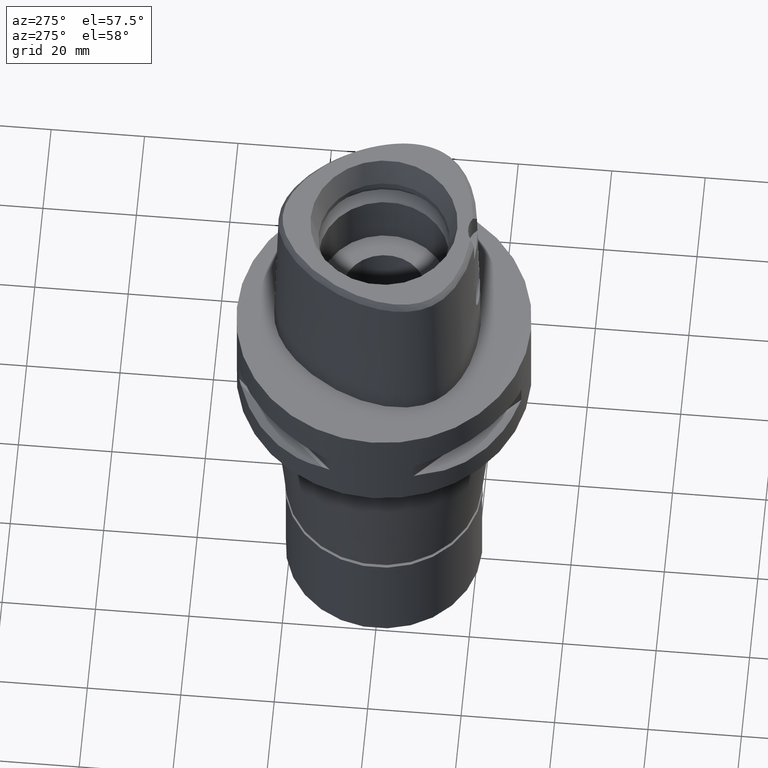
[diagram: clean part render]
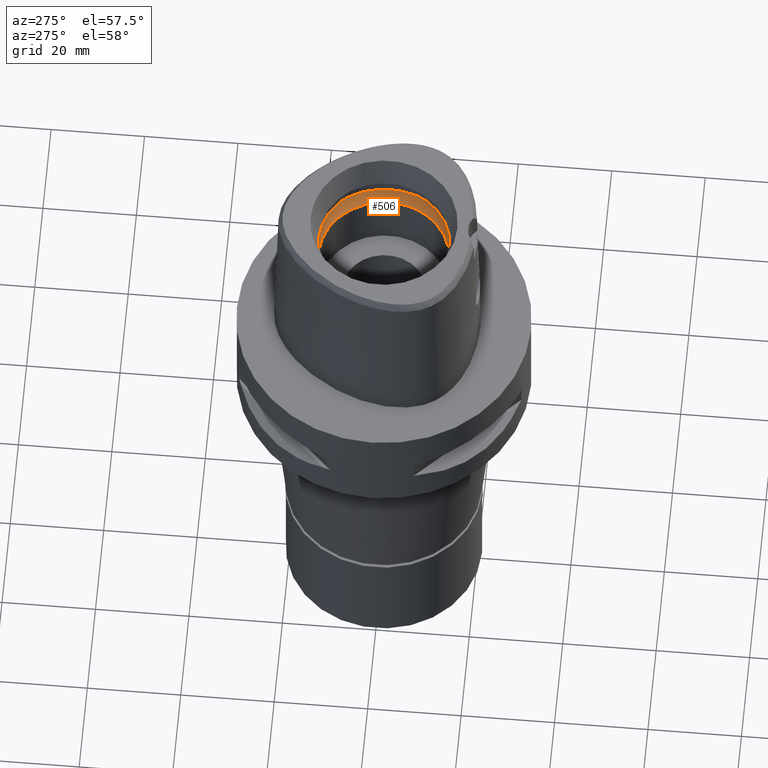
[diagram: same view with one face highlighted and labeled with its STEP entity id]
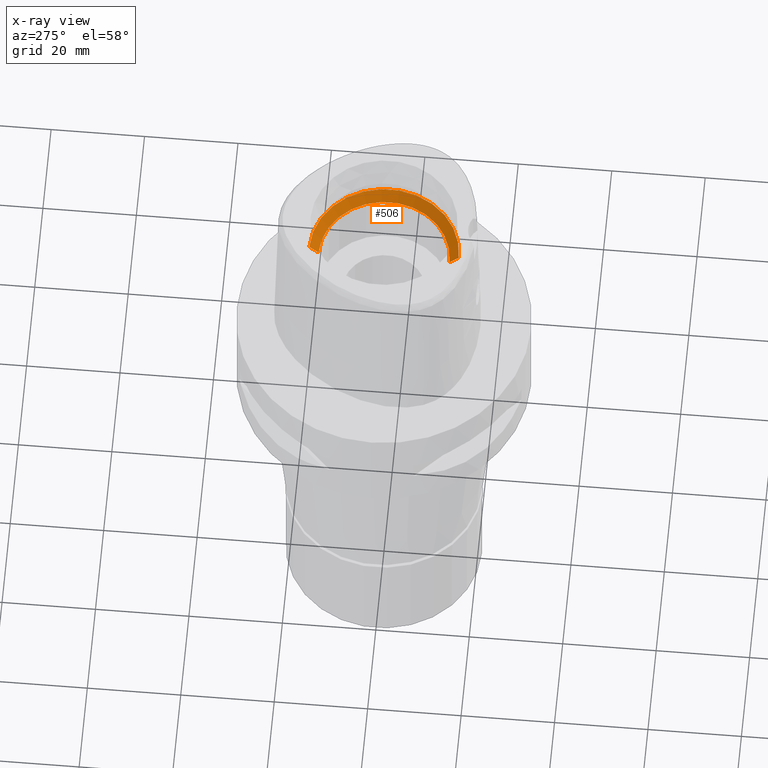
[diagram: x-ray of the same camera — body ghosted, the highlighted face saturated]
A machine part, auxiliary view. The second image highlights one B-rep face of the part: STEP entity #506.
The next image is the same camera in x-ray: the body ghosted, the highlighted face saturated — about 0% of this face is hidden behind the body in this view.
In plain terms, the highlighted conical surface has half-angle 45 deg.
Its self-contained STEP definition (entity closure, byte-faithful):
#4 = CARTESIAN_POINT ( 'NONE',  ( 0.0000000000000000000, 16.00000000000000000, 26.20000000000000284 ) ) ;
#13 = DIRECTION ( 'NONE',  ( 0.0000000000000000000, 0.7071067811865474617, 0.7071067811865474617 ) ) ;
#42 = ORIENTED_EDGE ( 'NONE', *, *, #614, .F. ) ;
#246 = CARTESIAN_POINT ( 'NONE',  ( 0.0000000000000000000, 0.0000000000000000000, 25.19999999999999929 ) ) ;
#434 = DIRECTION ( 'NONE',  ( 0.0000000000000000000, -0.7071067811865474617, 0.7071067811865474617 ) ) ;
#506 = ADVANCED_FACE ( 'NONE', ( #4493 ), #1627, .F. ) ;
#584 = ORIENTED_EDGE ( 'NONE', *, *, #2542, .F. ) ;
#614 = EDGE_CURVE ( 'NONE', #4455, #3155, #3818, .T. ) ;
#912 = CARTESIAN_POINT ( 'NONE',  ( 0.0000000000000000000, 14.00000000000000000, 24.19999999999999929 ) ) ;
#1019 = DIRECTION ( 'NONE',  ( 0.0000000000000000000, 0.0000000000000000000, -1.000000000000000000 ) ) ;
#1027 = DIRECTION ( 'NONE',  ( 0.0000000000000000000, 0.0000000000000000000, 1.000000000000000000 ) ) ;
#1047 = DIRECTION ( 'NONE',  ( 0.0000000000000000000, 1.000000000000000000, 0.0000000000000000000 ) ) ;
#1542 = CARTESIAN_POINT ( 'NONE',  ( 0.0000000000000000000, 0.0000000000000000000, 24.19999999999999929 ) ) ;
#1614 = CARTESIAN_POINT ( 'NONE',  ( 0.0000000000000000000, -14.00000000000000000, 24.19999999999999929 ) ) ;
#1627 = CONICAL_SURFACE ( 'NONE', #3481, 15.00000000000000000, 0.7853981633972997312 ) ;
#1643 = CARTESIAN_POINT ( 'NONE',  ( 0.0000000000000000000, -14.00000000000000000, 24.19999999999999929 ) ) ;
#1664 = EDGE_CURVE ( 'NONE', #4238, #4455, #3704, .T. ) ;
#1705 = EDGE_LOOP ( 'NONE', ( #584, #42, #3486, #3106 ) ) ;
#1774 = CIRCLE ( 'NONE', #2261, 16.00000000000000000 ) ;
#2261 = AXIS2_PLACEMENT_3D ( 'NONE', #3733, #1019, #4530 ) ;
#2462 = VECTOR ( 'NONE', #434, 1000.000000000000114 ) ;
#2542 = EDGE_CURVE ( 'NONE', #3155, #4952, #1774, .T. ) ;
#2693 = DIRECTION ( 'NONE',  ( 0.0000000000000000000, 0.0000000000000000000, 1.000000000000000000 ) ) ;
#2974 = AXIS2_PLACEMENT_3D ( 'NONE', #1542, #2693, #4215 ) ;
#3106 = ORIENTED_EDGE ( 'NONE', *, *, #4831, .T. ) ;
#3155 = VERTEX_POINT ( 'NONE', #4 ) ;
#3481 = AXIS2_PLACEMENT_3D ( 'NONE', #246, #1027, #1047 ) ;
#3482 = LINE ( 'NONE', #1614, #2462 ) ;
#3486 = ORIENTED_EDGE ( 'NONE', *, *, #1664, .F. ) ;
#3521 = CARTESIAN_POINT ( 'NONE',  ( 0.0000000000000000000, 14.00000000000000000, 24.19999999999999929 ) ) ;
#3704 = CIRCLE ( 'NONE', #2974, 14.00000000000000000 ) ;
#3733 = CARTESIAN_POINT ( 'NONE',  ( 0.0000000000000000000, 0.0000000000000000000, 26.20000000000000284 ) ) ;
#3818 = LINE ( 'NONE', #3521, #3882 ) ;
#3882 = VECTOR ( 'NONE', #13, 1000.000000000000114 ) ;
#4215 = DIRECTION ( 'NONE',  ( 0.0000000000000000000, -1.000000000000000000, 0.0000000000000000000 ) ) ;
#4238 = VERTEX_POINT ( 'NONE', #1643 ) ;
#4455 = VERTEX_POINT ( 'NONE', #912 ) ;
#4493 = FACE_OUTER_BOUND ( 'NONE', #1705, .T. ) ;
#4530 = DIRECTION ( 'NONE',  ( 0.0000000000000000000, 1.000000000000000000, 0.0000000000000000000 ) ) ;
#4629 = CARTESIAN_POINT ( 'NONE',  ( 0.0000000000000000000, -16.00000000000000000, 26.20000000000000284 ) ) ;
#4831 = EDGE_CURVE ( 'NONE', #4238, #4952, #3482, .T. ) ;
#4952 = VERTEX_POINT ( 'NONE', #4629 ) ;